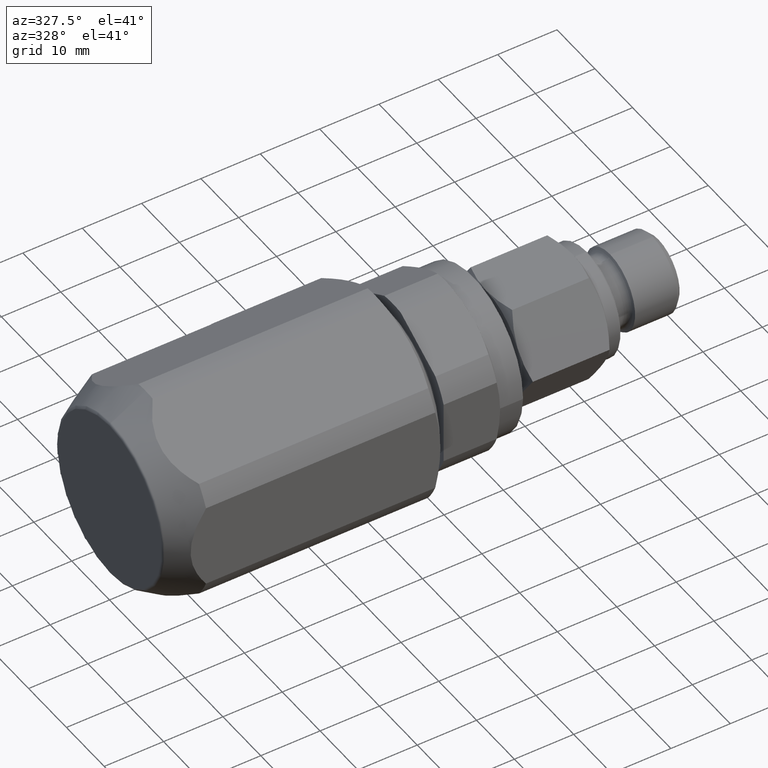
[diagram: clean part render]
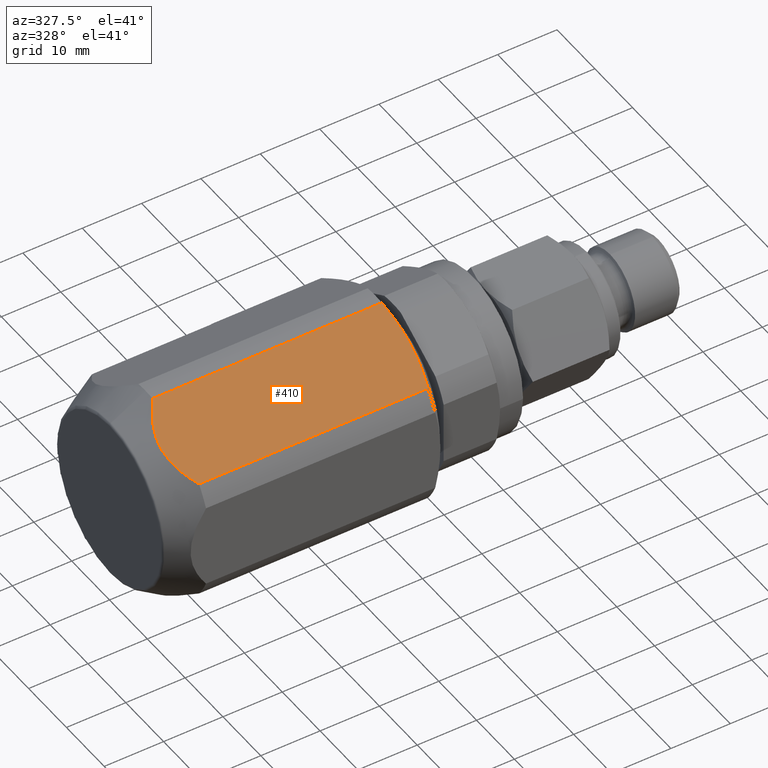
[diagram: same view with one face highlighted and labeled with its STEP entity id]
A machine part, auxiliary view. The second image highlights one B-rep face of the part: STEP entity #410.
In plain terms, the highlighted planar face has unit normal (0, -0.5, 0.866).
Its self-contained STEP definition (entity closure, byte-faithful):
#36 = VERTEX_POINT ( 'NONE', #1163 ) ;
#38 = EDGE_CURVE ( 'NONE', #304, #36, #1162, .T. ) ;
#88 = EDGE_CURVE ( 'NONE', #36, #333, #1274, .T. ) ;
#304 = VERTEX_POINT ( 'NONE', #1878 ) ;
#333 = VERTEX_POINT ( 'NONE', #1984 ) ;
#404 = EDGE_CURVE ( 'NONE', #333, #405, #2156, .T. ) ;
#405 = VERTEX_POINT ( 'NONE', #2152 ) ;
#410 = ADVANCED_FACE ( 'NONE', ( #2146 ), #2145, .T. ) ;
#411 = EDGE_LOOP ( 'NONE', ( #499, #501, #502, #503 ) ) ;
#499 = ORIENTED_EDGE ( 'NONE', *, *, #500, .T. ) ;
#500 = EDGE_CURVE ( 'NONE', #405, #304, #2362, .T. ) ;
#501 = ORIENTED_EDGE ( 'NONE', *, *, #38, .T. ) ;
#502 = ORIENTED_EDGE ( 'NONE', *, *, #88, .T. ) ;
#503 = ORIENTED_EDGE ( 'NONE', *, *, #404, .T. ) ;
#1159 = DIRECTION ( 'NONE',  ( -1.000000000000000000, 0.0000000000000000000, 0.0000000000000000000 ) ) ;
#1160 = VECTOR ( 'NONE', #1159, 1000.000000000000000 ) ;
#1161 = CARTESIAN_POINT ( 'NONE',  ( 9.247099999999999700, -1.860985421095644900, 17.40076818024050100 ) ) ;
#1162 = LINE ( 'NONE', #1161, #1160 ) ;
#1163 = CARTESIAN_POINT ( 'NONE',  ( 6.062177826491050000, -1.860985421095654900, 17.40076818024050100 ) ) ;
#1244 = CARTESIAN_POINT ( 'NONE',  ( 6.062177826491060600, -14.13901457890432000, 10.31204474086158000 ) ) ;
#1245 = CARTESIAN_POINT ( 'NONE',  ( 5.693157650672781700, -13.68351274334574400, 10.57502884823769000 ) ) ;
#1246 = CARTESIAN_POINT ( 'NONE',  ( 5.348815704132998200, -13.21647772797859100, 10.84467164008090200 ) ) ;
#1247 = CARTESIAN_POINT ( 'NONE',  ( 4.725165833270025000, -12.25201454936342300, 11.40150471587784900 ) ) ;
#1248 = CARTESIAN_POINT ( 'NONE',  ( 4.445748341921903300, -11.75463759141808300, 11.68866543643630800 ) ) ;
#1249 = CARTESIAN_POINT ( 'NONE',  ( 4.092356184618641800, -10.97785184015359200, 12.13714289903152700 ) ) ;
#1250 = CARTESIAN_POINT ( 'NONE',  ( 3.985791137878884200, -10.71386438748530000, 12.28955612589224700 ) ) ;
#1251 = CARTESIAN_POINT ( 'NONE',  ( 3.801097378697195800, -10.18316734638968200, 12.59595420542693700 ) ) ;
#1252 = CARTESIAN_POINT ( 'NONE',  ( 3.722480600763541600, -9.915446735939260800, 12.75052277193810300 ) ) ;
#1253 = CARTESIAN_POINT ( 'NONE',  ( 3.595010248100968900, -9.374863455966012900, 13.06262867415006600 ) ) ;
#1254 = CARTESIAN_POINT ( 'NONE',  ( 3.546158768236330200, -9.102000424522605800, 13.22016621880581300 ) ) ;
#1255 = CARTESIAN_POINT ( 'NONE',  ( 3.480522650864000100, -8.550734312853723700, 13.53843985677296600 ) ) ;
#1261 = CARTESIAN_POINT ( 'NONE',  ( 3.463791639293722900, -8.270683780737394700, 13.70012710687702300 ) ) ;
#1262 = CARTESIAN_POINT ( 'NONE',  ( 3.464734809779340500, -7.435169717314106000, 14.18251137630618100 ) ) ;
#1263 = CARTESIAN_POINT ( 'NONE',  ( 3.532656185614419600, -6.886590121723639200, 14.49923395349227700 ) ) ;
#1264 = CARTESIAN_POINT ( 'NONE',  ( 3.789219982230096900, -5.804553721476140500, 15.12394796044814000 ) ) ;
#1265 = CARTESIAN_POINT ( 'NONE',  ( 3.980223891899781200, -5.267026382115063600, 15.43428951452503700 ) ) ;
#1266 = CARTESIAN_POINT ( 'NONE',  ( 4.684660926132754500, -3.723458879038400200, 16.32546862793871200 ) ) ;
#1272 = CARTESIAN_POINT ( 'NONE',  ( 5.325186713716772300, -2.770693959159324000, 16.87554771090532300 ) ) ;
#1273 = CARTESIAN_POINT ( 'NONE',  ( 6.062177826491050000, -1.860985421095654900, 17.40076818024050100 ) ) ;
#1274 = B_SPLINE_CURVE_WITH_KNOTS ( 'NONE', 3,
 ( #1273, #1272, #1266, #1265, #1264, #1263, #1262, #1261, #1255, #1254, #1253, #1252, #1251, #1250, #1249, #1248, #1247, #1246, #1245, #1244 ),
 .UNSPECIFIED., .F., .F.,
 ( 4, 2, 2, 2, 2, 2, 2, 2, 2, 4 ),
 ( 3.450088407737055900E-007, 0.003814418830121602500, 0.005721455740762016300, 0.007628492651402430900, 0.008582011106722634700, 0.009535529562042838500, 0.01048904801736304200, 0.01144256647268324600, 0.01334960338332365400, 0.01525664029396406200 ),
 .UNSPECIFIED. ) ;
#1878 = CARTESIAN_POINT ( 'NONE',  ( 44.69059892324150200, -1.860985421095644900, 17.40076818024050100 ) ) ;
#1984 = CARTESIAN_POINT ( 'NONE',  ( 6.062177826491060600, -14.13901457890432000, 10.31204474086158000 ) ) ;
#2141 = DIRECTION ( 'NONE',  ( 0.0000000000000000000, -0.8660254037844387100, -0.4999999999999998900 ) ) ;
#2142 = DIRECTION ( 'NONE',  ( 0.0000000000000000000, -0.4999999999999998900, 0.8660254037844387100 ) ) ;
#2143 = CARTESIAN_POINT ( 'NONE',  ( 0.0000000000000000000, -16.00000000000000000, 9.237604307034018800 ) ) ;
#2144 = AXIS2_PLACEMENT_3D ( 'NONE', #2143, #2142, #2141 ) ;
#2145 = PLANE ( 'NONE',  #2144 ) ;
#2146 = FACE_OUTER_BOUND ( 'NONE', #411, .T. ) ;
#2152 = CARTESIAN_POINT ( 'NONE',  ( 44.69059892324150200, -14.13901457890434100, 10.31204474086156100 ) ) ;
#2153 = DIRECTION ( 'NONE',  ( 1.000000000000000000, 0.0000000000000000000, 0.0000000000000000000 ) ) ;
#2154 = VECTOR ( 'NONE', #2153, 1000.000000000000000 ) ;
#2155 = CARTESIAN_POINT ( 'NONE',  ( 9.247099999999999700, -14.13901457890434100, 10.31204474086156100 ) ) ;
#2156 = LINE ( 'NONE', #2155, #2154 ) ;
#2347 = CARTESIAN_POINT ( 'NONE',  ( 44.69059892324150200, -1.860985421095644900, 17.40076818024050100 ) ) ;
#2348 = CARTESIAN_POINT ( 'NONE',  ( 44.96399651680404500, -2.873394339624381700, 16.81625361859794800 ) ) ;
#2349 = CARTESIAN_POINT ( 'NONE',  ( 45.18282769901377100, -3.893461726852755600, 16.22731743799009200 ) ) ;
#2350 = CARTESIAN_POINT ( 'NONE',  ( 45.40606607649657900, -5.438300876275213200, 15.33540413921635800 ) ) ;
#2351 = CARTESIAN_POINT ( 'NONE',  ( 45.46305678137157000, -5.957027329396797900, 15.03591728187083600 ) ) ;
#2352 = CARTESIAN_POINT ( 'NONE',  ( 45.53855519318317100, -6.991851495431463400, 14.43846127104678900 ) ) ;
#2353 = CARTESIAN_POINT ( 'NONE',  ( 45.55717276444576000, -7.507920820838864800, 14.14050850710231800 ) ) ;
#2354 = CARTESIAN_POINT ( 'NONE',  ( 45.55549044725338300, -9.052090689386167500, 13.24898161782202200 ) ) ;
#2355 = CARTESIAN_POINT ( 'NONE',  ( 45.47707645376388500, -10.07611248242265700, 12.65776235995636200 ) ) ;
#2356 = CARTESIAN_POINT ( 'NONE',  ( 45.18084001213733100, -12.11437165817954800, 11.48097287615489900 ) ) ;
#2357 = CARTESIAN_POINT ( 'NONE',  ( 44.96344736456191500, -13.12863920653845700, 10.89538523407957600 ) ) ;
#2358 = CARTESIAN_POINT ( 'NONE',  ( 44.69059892324150200, -14.13901457890434100, 10.31204474086156100 ) ) ;
#2362 = B_SPLINE_CURVE_WITH_KNOTS ( 'NONE', 3,
 ( #2358, #2357, #2356, #2355, #2354, #2353, #2352, #2351, #2350, #2349, #2348, #2347 ),
 .UNSPECIFIED., .F., .F.,
 ( 4, 2, 2, 2, 2, 4 ),
 ( 8.685040947869746600E-007, 0.003555594216168302900, 0.007110319928241818800, 0.008887682784278577000, 0.01066504564031533500, 0.01421977135238885200 ),
 .UNSPECIFIED. ) ;